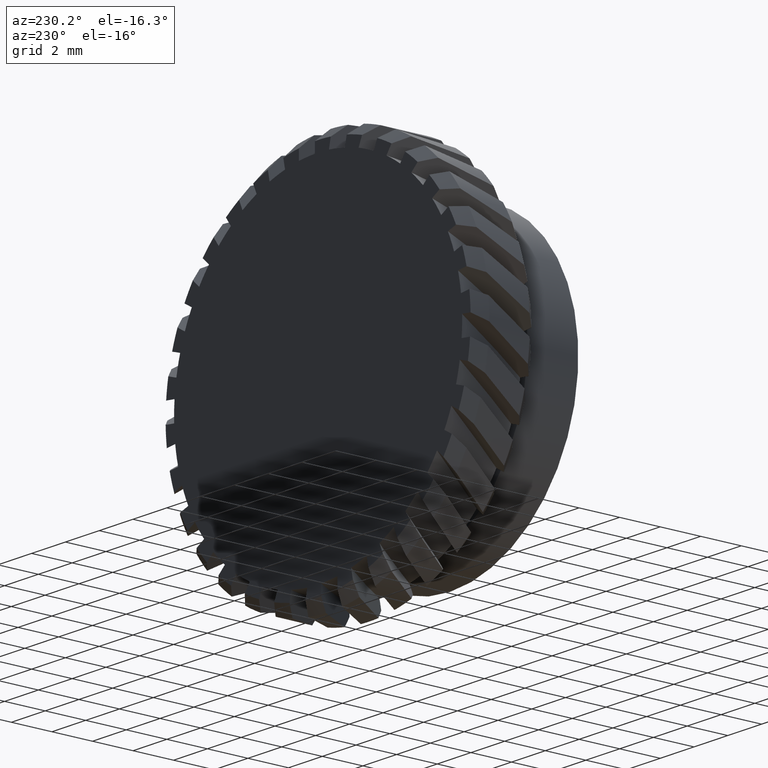
[diagram: clean part render]
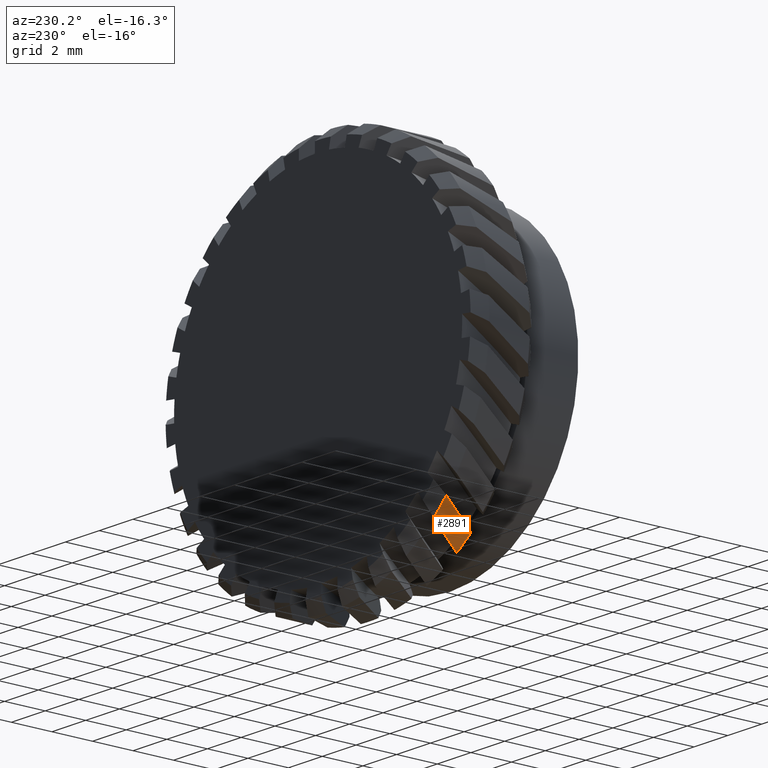
[diagram: same view with one face highlighted and labeled with its STEP entity id]
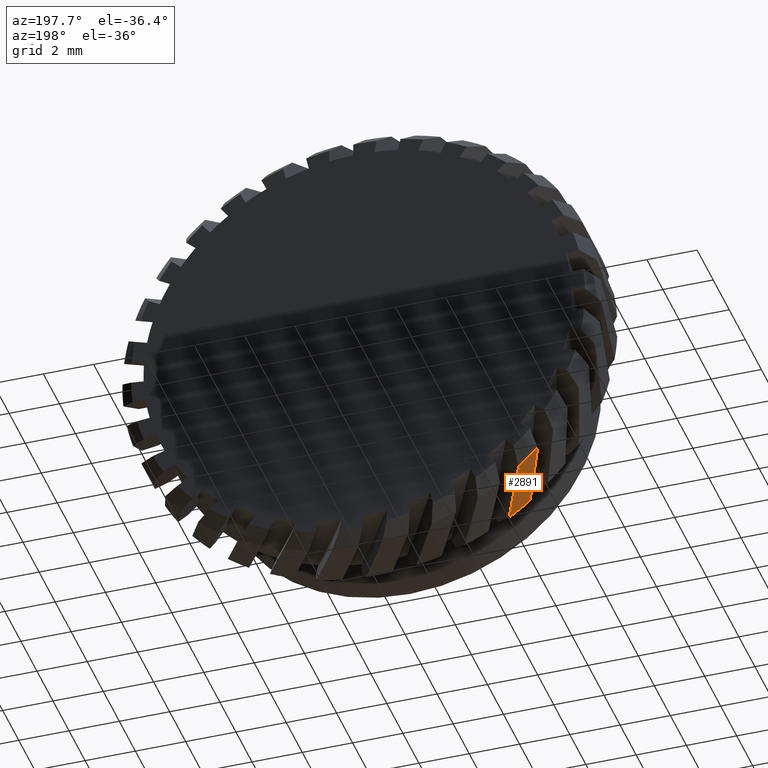
[diagram: same view with one face highlighted and labeled with its STEP entity id]
A machine part, auxiliary view. The second image highlights one B-rep face of the part: STEP entity #2891.
A second angle (auxiliary view) of the same face is appended — the face is thin or edge-on in the first view.
In plain terms, the highlighted cylindrical surface (partial cylindrical patch) has radius 9.525 mm, axis along (-0, 1, -0).
Its self-contained STEP definition (entity closure, byte-faithful):
#654 = CARTESIAN_POINT ( 'NONE',  ( -6.695564610736262500, 20.70139386461857700, -6.788263061637641400 ) ) ;
#701 = CARTESIAN_POINT ( 'NONE',  ( -6.988206804174318200, 21.37125740523061900, -6.472294080315871900 ) ) ;
#883 = DIRECTION ( 'NONE',  ( 0.0000000000000000000, -1.000000000000000000, 0.0000000000000000000 ) ) ;
#1228 = CIRCLE ( 'NONE', #2999, 9.525000000000005700 ) ;
#1243 = FACE_OUTER_BOUND ( 'NONE', #5206, .T. ) ;
#1453 = VERTEX_POINT ( 'NONE', #3556 ) ;
#1763 = ORIENTED_EDGE ( 'NONE', *, *, #5446, .T. ) ;
#1863 = CIRCLE ( 'NONE', #4694, 9.525000000000005700 ) ;
#1865 = VERTEX_POINT ( 'NONE', #701 ) ;
#2891 = ADVANCED_FACE ( 'NONE', ( #1243 ), #5978, .T. ) ;
#2999 = AXIS2_PLACEMENT_3D ( 'NONE', #5964, #6575, #3565 ) ;
#3084 = DIRECTION ( 'NONE',  ( 0.0000000000000000000, 0.0000000000000000000, 1.000000000000000000 ) ) ;
#3462 =( BOUNDED_CURVE ( )  B_SPLINE_CURVE ( 3, ( #7006, #4516, #3977, #4571 ),
 .UNSPECIFIED., .F., .F. ) 
 B_SPLINE_CURVE_WITH_KNOTS ( ( 4, 4 ),
 ( 1.484893562231942400, 1.620002154428315200 ),
 .UNSPECIFIED. ) 
 CURVE ( )  GEOMETRIC_REPRESENTATION_ITEM ( )  RATIONAL_B_SPLINE_CURVE ( ( 1.000000000000000000, 0.9984793841129278000, 0.9984793841129278000, 1.000000000000000000 ) ) 
 REPRESENTATION_ITEM ( '' )  );
#3556 = CARTESIAN_POINT ( 'NONE',  ( -6.049543714786619100, 19.37125740523060800, -7.357217262177721700 ) ) ;
#3565 = DIRECTION ( 'NONE',  ( 0.0000000000000000000, 0.0000000000000000000, 1.000000000000000000 ) ) ;
#3834 = EDGE_CURVE ( 'NONE', #7472, #1453, #1228, .T. ) ;
#3977 = CARTESIAN_POINT ( 'NONE',  ( -5.572155570182233400, 20.03824349520654700, -7.736989251669121400 ) ) ;
#4346 = EDGE_CURVE ( 'NONE', #1453, #1865, #6017, .T. ) ;
#4516 = CARTESIAN_POINT ( 'NONE',  ( -5.914775488359660800, 20.70592544966066500, -7.478325434283808800 ) ) ;
#4571 = CARTESIAN_POINT ( 'NONE',  ( -5.212856577361360900, 19.37125740523060800, -7.971935229532444800 ) ) ;
#4694 = AXIS2_PLACEMENT_3D ( 'NONE', #7579, #883, #7059 ) ;
#4879 = CARTESIAN_POINT ( 'NONE',  ( -6.049543714786619100, 19.37125740523060800, -7.357217262177721700 ) ) ;
#5206 = EDGE_LOOP ( 'NONE', ( #6940, #7112, #1763, #7040 ) ) ;
#5445 = AXIS2_PLACEMENT_3D ( 'NONE', #6647, #6694, #3084 ) ;
#5446 = EDGE_CURVE ( 'NONE', #1865, #5657, #1863, .T. ) ;
#5532 = CARTESIAN_POINT ( 'NONE',  ( -6.382197356677209200, 20.03370540940624500, -7.083689557777100600 ) ) ;
#5657 = VERTEX_POINT ( 'NONE', #6674 ) ;
#5964 = CARTESIAN_POINT ( 'NONE',  ( 0.0000000000000000000, 19.37125740523060800, 0.0000000000000000000 ) ) ;
#5967 = CARTESIAN_POINT ( 'NONE',  ( -5.212856577361360900, 19.37125740523060800, -7.971935229532444800 ) ) ;
#5978 = CYLINDRICAL_SURFACE ( 'NONE', #5445, 9.525000000000005700 ) ;
#6017 =( BOUNDED_CURVE ( )  B_SPLINE_CURVE ( 3, ( #4879, #5532, #654, #6059 ),
 .UNSPECIFIED., .F., .T. ) 
 B_SPLINE_CURVE_WITH_KNOTS ( ( 4, 4 ),
 ( 4.562798301920572900, 4.698338250505564400 ),
 .UNSPECIFIED. ) 
 CURVE ( )  GEOMETRIC_REPRESENTATION_ITEM ( )  RATIONAL_B_SPLINE_CURVE ( ( 1.000000000000000000, 0.9984696627031844900, 0.9984696627031844900, 1.000000000000000000 ) ) 
 REPRESENTATION_ITEM ( '' )  );
#6059 = CARTESIAN_POINT ( 'NONE',  ( -6.988206804174318200, 21.37125740523061900, -6.472294080315871900 ) ) ;
#6457 = EDGE_CURVE ( 'NONE', #5657, #7472, #3462, .T. ) ;
#6575 = DIRECTION ( 'NONE',  ( -0.0000000000000000000, 1.000000000000000000, -0.0000000000000000000 ) ) ;
#6647 = CARTESIAN_POINT ( 'NONE',  ( 0.0000000000000000000, 66.62876213592232900, 0.0000000000000000000 ) ) ;
#6674 = CARTESIAN_POINT ( 'NONE',  ( -6.239153352021217500, 21.37125740523061900, -7.197123762306892700 ) ) ;
#6694 = DIRECTION ( 'NONE',  ( -0.0000000000000000000, 1.000000000000000000, -0.0000000000000000000 ) ) ;
#6940 = ORIENTED_EDGE ( 'NONE', *, *, #3834, .T. ) ;
#7006 = CARTESIAN_POINT ( 'NONE',  ( -6.239153352021217500, 21.37125740523061900, -7.197123762306892700 ) ) ;
#7040 = ORIENTED_EDGE ( 'NONE', *, *, #6457, .T. ) ;
#7059 = DIRECTION ( 'NONE',  ( 0.0000000000000000000, 0.0000000000000000000, -1.000000000000000000 ) ) ;
#7112 = ORIENTED_EDGE ( 'NONE', *, *, #4346, .T. ) ;
#7472 = VERTEX_POINT ( 'NONE', #5967 ) ;
#7579 = CARTESIAN_POINT ( 'NONE',  ( 0.0000000000000000000, 21.37125740523061900, 0.0000000000000000000 ) ) ;